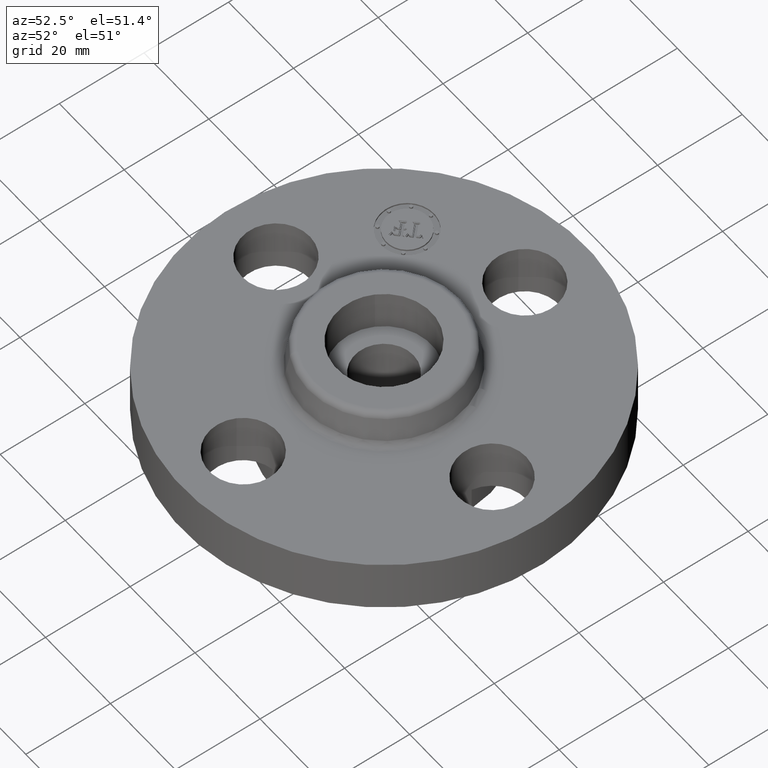
[diagram: clean part render]
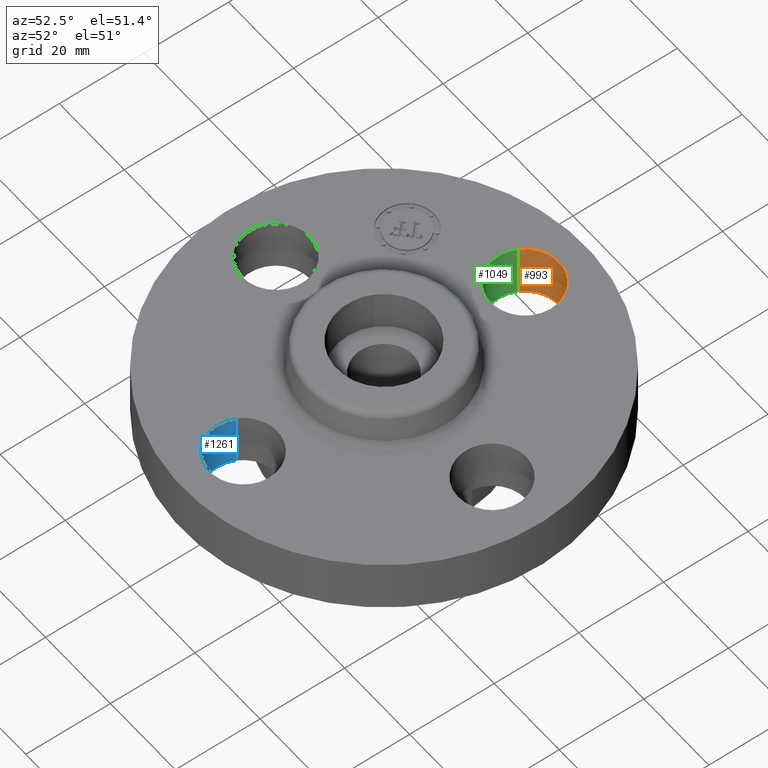
[diagram: same view with three faces highlighted in distinct colors, each labeled with its STEP entity id]
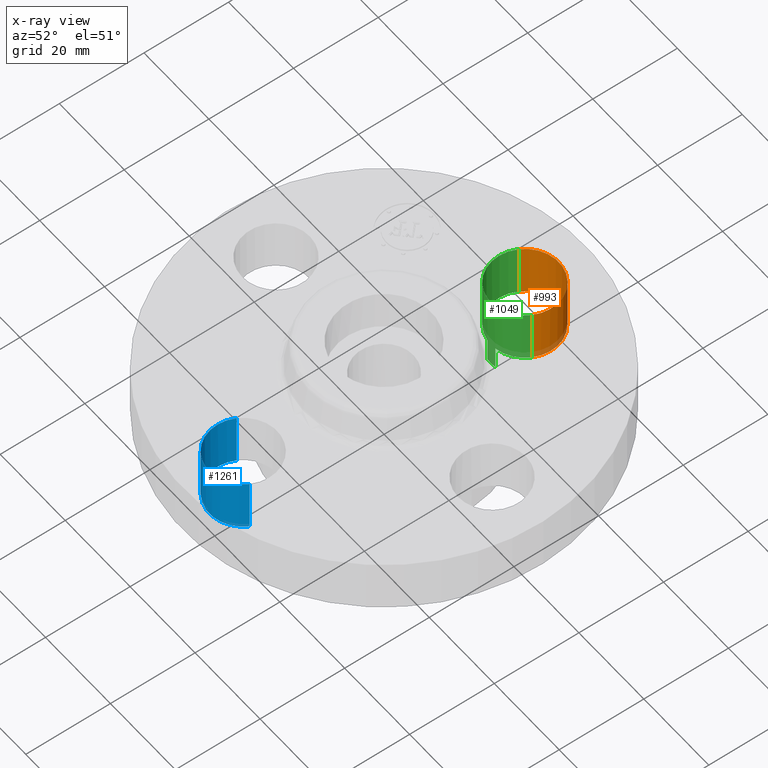
[diagram: x-ray of the same camera — body ghosted, the three highlighted faces saturated]
A machine part, auxiliary view with three faces highlighted in distinct colors.
The next image is the same camera in x-ray (body ghosted, the three faces saturated) — at least one of them is partly hidden behind the body in this view.
Their STEP definitions:

[orange] entity #993 — the highlighted cylindrical surface (partial cylindrical patch) has radius 8.001 mm, axis along (0, -0, -1).
#715=AXIS2_PLACEMENT_3D('Circle Axis2P3D',#713,#714,$) ;
#954=AXIS2_PLACEMENT_3D('Cylinder Axis2P3D',#951,#952,#953) ;
#713=CARTESIAN_POINT('Axis2P3D Location',(1.74838271595E-017,1.31000000002,0.500000000002)) ;
#717=CARTESIAN_POINT('Vertex',(-0.276438506996,1.46101904467,0.499999999987)) ;
#719=CARTESIAN_POINT('Vertex',(0.276438506965,1.15898095534,0.500000000002)) ;
#951=CARTESIAN_POINT('Axis2P3D Location',(0.,1.31000000001,0.496062992128)) ;
#956=CARTESIAN_POINT('Line Origine',(-0.276438506996,1.46101904467,0.250000000001)) ;
#960=CARTESIAN_POINT('Vertex',(-0.276438506965,1.46101904467,0.)) ;
#964=CARTESIAN_POINT('Control Point',(-0.276438506996,1.46101904467,0.)) ;
#965=CARTESIAN_POINT('Control Point',(-0.252716490933,1.50444190381,8.34104439061E-013)) ;
#966=CARTESIAN_POINT('Control Point',(-0.220468416416,1.54320695598,1.66820887812E-012)) ;
#967=CARTESIAN_POINT('Control Point',(-0.180906878601,1.57507453335,2.50231331718E-012)) ;
#968=CARTESIAN_POINT('Control Point',(-0.0914202191715,1.62158053409,4.17052219531E-012)) ;
#969=CARTESIAN_POINT('Control Point',(0.00900750770346,1.63079693228,5.83873107343E-012)) ;
#970=CARTESIAN_POINT('Control Point',(0.059515519424,1.62535648068,6.67283551249E-012)) ;
#971=CARTESIAN_POINT('Control Point',(0.155676851623,1.59496456546,8.34104439061E-012)) ;
#972=CARTESIAN_POINT('Control Point',(0.233206955974,1.53046841643,1.00092532687E-011)) ;
#973=CARTESIAN_POINT('Control Point',(0.265074533342,1.49090687861,1.08433577078E-011)) ;
#974=CARTESIAN_POINT('Control Point',(0.311580534084,1.40142021918,1.25115665859E-011)) ;
#975=CARTESIAN_POINT('Control Point',(0.320796932274,1.30099249231,1.4179775464E-011)) ;
#976=CARTESIAN_POINT('Control Point',(0.315356480668,1.25048448059,1.50138799031E-011)) ;
#977=CARTESIAN_POINT('Control Point',(0.300160523059,1.20240381449,1.58479843422E-011)) ;
#978=CARTESIAN_POINT('Control Point',(0.276438506996,1.15898095535,1.66820887812E-011)) ;
#979=CARTESIAN_POINT('Vertex',(0.276438506965,1.15898095532,0.)) ;
#982=CARTESIAN_POINT('Line Origine',(0.276438506996,1.15898095535,0.250000000001)) ;
#714=DIRECTION('Axis2P3D Direction',(0.,0.,-0.0393700787402)) ;
#952=DIRECTION('Axis2P3D Direction',(0.,-0.,-0.0393700787402)) ;
#953=DIRECTION('Axis2P3D XDirection',(-0.0345504945626,0.0188750212049,0.)) ;
#957=DIRECTION('Vector Direction',(0.,0.,-0.0393700787402)) ;
#983=DIRECTION('Vector Direction',(0.,0.,-0.0393700787402)) ;
#958=VECTOR('Line Direction',#957,0.0393700787402) ;
#984=VECTOR('Line Direction',#983,0.0393700787402) ;
#988=ORIENTED_EDGE('',*,*,#962,.F.) ;
#989=ORIENTED_EDGE('',*,*,#981,.T.) ;
#990=ORIENTED_EDGE('',*,*,#986,.T.) ;
#991=ORIENTED_EDGE('',*,*,#721,.F.) ;
#993=ADVANCED_FACE('PartBody',(#992),#955,.F.) ;
#963=B_SPLINE_CURVE_WITH_KNOTS('',5,(#964,#965,#966,#967,#968,#969,#970,#971,#972,#973,#974,#975,#976,#977,#978),.UNSPECIFIED.,.F.,.U.,(6,3,3,3,6),(-12.5679414107,-6.28397070536,8.881784197E-016,6.28397070536,12.5679414107),.UNSPECIFIED.) ;
#716=CIRCLE('generated circle',#715,0.314999999981) ;
#955=CYLINDRICAL_SURFACE('generated cylinder',#954,0.315000000001) ;
#721=EDGE_CURVE('',#718,#720,#716,.T.) ;
#962=EDGE_CURVE('',#961,#718,#959,.F.) ;
#981=EDGE_CURVE('',#961,#980,#963,.T.) ;
#986=EDGE_CURVE('',#980,#720,#985,.F.) ;
#987=EDGE_LOOP('',(#988,#989,#990,#991)) ;
#992=FACE_OUTER_BOUND('',#987,.T.) ;
#959=LINE('Line',#956,#958) ;
#985=LINE('Line',#982,#984) ;
#718=VERTEX_POINT('',#717) ;
#720=VERTEX_POINT('',#719) ;
#961=VERTEX_POINT('',#960) ;
#980=VERTEX_POINT('',#979) ;

[blue] entity #1261 — the highlighted cylindrical surface (partial cylindrical patch) has radius 8.001 mm, axis along (0, 0, -1).
#764=AXIS2_PLACEMENT_3D('Circle Axis2P3D',#762,#763,$) ;
#1236=AXIS2_PLACEMENT_3D('Cylinder Axis2P3D',#1233,#1234,#1235) ;
#757=CARTESIAN_POINT('Vertex',(-0.276438506965,-1.15898095532,0.500000000002)) ;
#759=CARTESIAN_POINT('Vertex',(0.276438506996,-1.46101904467,0.499999999987)) ;
#762=CARTESIAN_POINT('Axis2P3D Location',(-3.08535874015E-011,-1.31000000005,0.500000000002)) ;
#1168=CARTESIAN_POINT('Line Origine',(-0.276438506996,-1.15898095535,0.140500000005)) ;
#1172=CARTESIAN_POINT('Vertex',(-0.276438506965,-1.15898095535,0.)) ;
#1207=CARTESIAN_POINT('Vertex',(0.276438506965,-1.4610190447,0.)) ;
#1210=CARTESIAN_POINT('Line Origine',(0.276438506996,-1.46101904467,0.140500000005)) ;
#1233=CARTESIAN_POINT('Axis2P3D Location',(1.60428730689E-016,-1.31000000001,0.496062992128)) ;
#1239=CARTESIAN_POINT('Control Point',(0.276438506996,-1.46101904467,0.)) ;
#1240=CARTESIAN_POINT('Control Point',(0.252716490933,-1.50444190381,8.34104439061E-013)) ;
#1241=CARTESIAN_POINT('Control Point',(0.220468416416,-1.54320695598,1.66820887812E-012)) ;
#1242=CARTESIAN_POINT('Control Point',(0.180906878601,-1.57507453335,2.50231331718E-012)) ;
#1243=CARTESIAN_POINT('Control Point',(0.0914202191715,-1.62158053409,4.17052219531E-012)) ;
#1244=CARTESIAN_POINT('Control Point',(-0.00900750770346,-1.63079693228,5.83873107343E-012)) ;
#1245=CARTESIAN_POINT('Control Point',(-0.059515519424,-1.62535648068,6.67283551249E-012)) ;
#1246=CARTESIAN_POINT('Control Point',(-0.155676851623,-1.59496456546,8.34104439061E-012)) ;
#1247=CARTESIAN_POINT('Control Point',(-0.233206955974,-1.53046841643,1.00092532687E-011)) ;
#1248=CARTESIAN_POINT('Control Point',(-0.265074533342,-1.49090687861,1.08433577078E-011)) ;
#1249=CARTESIAN_POINT('Control Point',(-0.311580534084,-1.40142021918,1.25115665859E-011)) ;
#1250=CARTESIAN_POINT('Control Point',(-0.320796932274,-1.30099249231,1.4179775464E-011)) ;
#1251=CARTESIAN_POINT('Control Point',(-0.315356480668,-1.25048448059,1.50138799031E-011)) ;
#1252=CARTESIAN_POINT('Control Point',(-0.300160523059,-1.20240381449,1.58479843422E-011)) ;
#1253=CARTESIAN_POINT('Control Point',(-0.276438506996,-1.15898095535,1.66820887812E-011)) ;
#763=DIRECTION('Axis2P3D Direction',(0.,0.,-0.0393700787402)) ;
#1169=DIRECTION('Vector Direction',(0.,0.,-0.0393700787402)) ;
#1211=DIRECTION('Vector Direction',(0.,0.,-0.0393700787402)) ;
#1234=DIRECTION('Axis2P3D Direction',(0.,0.,-0.0393700787402)) ;
#1235=DIRECTION('Axis2P3D XDirection',(0.0345504945626,-0.0188750212049,0.)) ;
#1170=VECTOR('Line Direction',#1169,0.0393700787402) ;
#1212=VECTOR('Line Direction',#1211,0.0393700787402) ;
#1256=ORIENTED_EDGE('',*,*,#1214,.F.) ;
#1257=ORIENTED_EDGE('',*,*,#1254,.T.) ;
#1258=ORIENTED_EDGE('',*,*,#1174,.T.) ;
#1259=ORIENTED_EDGE('',*,*,#766,.F.) ;
#1261=ADVANCED_FACE('PartBody',(#1260),#1237,.F.) ;
#1238=B_SPLINE_CURVE_WITH_KNOTS('',5,(#1239,#1240,#1241,#1242,#1243,#1244,#1245,#1246,#1247,#1248,#1249,#1250,#1251,#1252,#1253),.UNSPECIFIED.,.F.,.U.,(6,3,3,3,6),(-12.5679414107,-6.28397070536,8.881784197E-016,6.28397070536,12.5679414107),.UNSPECIFIED.) ;
#765=CIRCLE('generated circle',#764,0.314999999981) ;
#1237=CYLINDRICAL_SURFACE('generated cylinder',#1236,0.315000000001) ;
#766=EDGE_CURVE('',#760,#758,#765,.T.) ;
#1174=EDGE_CURVE('',#1173,#758,#1171,.F.) ;
#1214=EDGE_CURVE('',#1208,#760,#1213,.F.) ;
#1254=EDGE_CURVE('',#1208,#1173,#1238,.T.) ;
#1255=EDGE_LOOP('',(#1256,#1257,#1258,#1259)) ;
#1260=FACE_OUTER_BOUND('',#1255,.T.) ;
#1171=LINE('Line',#1168,#1170) ;
#1213=LINE('Line',#1210,#1212) ;
#758=VERTEX_POINT('',#757) ;
#760=VERTEX_POINT('',#759) ;
#1173=VERTEX_POINT('',#1172) ;
#1208=VERTEX_POINT('',#1207) ;

[green] entity #1049 — the highlighted cylindrical surface (partial cylindrical patch) has radius 8.001 mm, axis along (0, -0, -1).
#724=AXIS2_PLACEMENT_3D('Circle Axis2P3D',#722,#723,$) ;
#1004=AXIS2_PLACEMENT_3D('Cylinder Axis2P3D',#1001,#1002,#1003) ;
#1008=AXIS2_PLACEMENT_3D('Circle Axis2P3D',#1006,#1007,$) ;
#1022=AXIS2_PLACEMENT_3D('Circle Axis2P3D',#1020,#1021,$) ;
#1036=AXIS2_PLACEMENT_3D('Circle Axis2P3D',#1034,#1035,$) ;
#717=CARTESIAN_POINT('Vertex',(-0.276438506996,1.46101904467,0.499999999987)) ;
#719=CARTESIAN_POINT('Vertex',(0.276438506965,1.15898095534,0.500000000002)) ;
#722=CARTESIAN_POINT('Axis2P3D Location',(-3.08535874015E-011,1.30999999996,0.500000000002)) ;
#956=CARTESIAN_POINT('Line Origine',(-0.276438506996,1.46101904467,0.250000000001)) ;
#960=CARTESIAN_POINT('Vertex',(-0.276438506965,1.46101904467,0.)) ;
#979=CARTESIAN_POINT('Vertex',(0.276438506965,1.15898095532,0.)) ;
#982=CARTESIAN_POINT('Line Origine',(0.276438506996,1.15898095535,0.250000000001)) ;
#1001=CARTESIAN_POINT('Axis2P3D Location',(0.,1.31000000001,0.496062992128)) ;
#1006=CARTESIAN_POINT('Axis2P3D Location',(0.,1.31000000001,1.66820887812E-011)) ;
#1010=CARTESIAN_POINT('Vertex',(0.0488269754869,0.998807251908,1.55491018136E-011)) ;
#1013=CARTESIAN_POINT('Line Origine',(0.0488269754863,0.998807251917,0.140500000005)) ;
#1017=CARTESIAN_POINT('Vertex',(0.0488269755133,0.998807251894,-0.219000000001)) ;
#1020=CARTESIAN_POINT('Axis2P3D Location',(0.,1.31000000001,-0.218999999977)) ;
#1024=CARTESIAN_POINT('Vertex',(-0.0488269755133,0.998807251894,-0.219000000001)) ;
#1027=CARTESIAN_POINT('Line Origine',(-0.0488269754863,0.998807251917,0.140500000005)) ;
#1031=CARTESIAN_POINT('Vertex',(-0.0488269754869,0.998807251908,1.55491018136E-011)) ;
#1034=CARTESIAN_POINT('Axis2P3D Location',(0.,1.31000000001,1.66820887812E-011)) ;
#723=DIRECTION('Axis2P3D Direction',(0.,0.,-0.0393700787402)) ;
#957=DIRECTION('Vector Direction',(0.,0.,-0.0393700787402)) ;
#983=DIRECTION('Vector Direction',(0.,0.,-0.0393700787402)) ;
#1002=DIRECTION('Axis2P3D Direction',(0.,-0.,-0.0393700787402)) ;
#1003=DIRECTION('Axis2P3D XDirection',(0.0345504945626,-0.0188750212049,0.)) ;
#1007=DIRECTION('Axis2P3D Direction',(0.,-0.,-0.0393700787402)) ;
#1014=DIRECTION('Vector Direction',(0.,0.,-0.0393700787402)) ;
#1021=DIRECTION('Axis2P3D Direction',(0.,-0.,-0.0393700787402)) ;
#1028=DIRECTION('Vector Direction',(0.,0.,-0.0393700787402)) ;
#1035=DIRECTION('Axis2P3D Direction',(0.,-0.,-0.0393700787402)) ;
#958=VECTOR('Line Direction',#957,0.0393700787402) ;
#984=VECTOR('Line Direction',#983,0.0393700787402) ;
#1015=VECTOR('Line Direction',#1014,0.0393700787402) ;
#1029=VECTOR('Line Direction',#1028,0.0393700787402) ;
#1040=ORIENTED_EDGE('',*,*,#986,.F.) ;
#1041=ORIENTED_EDGE('',*,*,#1012,.T.) ;
#1042=ORIENTED_EDGE('',*,*,#1019,.T.) ;
#1043=ORIENTED_EDGE('',*,*,#1026,.T.) ;
#1044=ORIENTED_EDGE('',*,*,#1033,.F.) ;
#1045=ORIENTED_EDGE('',*,*,#1038,.T.) ;
#1046=ORIENTED_EDGE('',*,*,#962,.T.) ;
#1047=ORIENTED_EDGE('',*,*,#726,.F.) ;
#1049=ADVANCED_FACE('PartBody',(#1048),#1005,.F.) ;
#725=CIRCLE('generated circle',#724,0.314999999981) ;
#1009=CIRCLE('generated circle',#1008,0.315000000001) ;
#1023=CIRCLE('generated circle',#1022,0.315000000001) ;
#1037=CIRCLE('generated circle',#1036,0.315000000001) ;
#1005=CYLINDRICAL_SURFACE('generated cylinder',#1004,0.315000000001) ;
#726=EDGE_CURVE('',#720,#718,#725,.T.) ;
#962=EDGE_CURVE('',#961,#718,#959,.F.) ;
#986=EDGE_CURVE('',#980,#720,#985,.F.) ;
#1012=EDGE_CURVE('',#980,#1011,#1009,.T.) ;
#1019=EDGE_CURVE('',#1011,#1018,#1016,.T.) ;
#1026=EDGE_CURVE('',#1018,#1025,#1023,.T.) ;
#1033=EDGE_CURVE('',#1032,#1025,#1030,.T.) ;
#1038=EDGE_CURVE('',#1032,#961,#1037,.T.) ;
#1039=EDGE_LOOP('',(#1040,#1041,#1042,#1043,#1044,#1045,#1046,#1047)) ;
#1048=FACE_OUTER_BOUND('',#1039,.T.) ;
#959=LINE('Line',#956,#958) ;
#985=LINE('Line',#982,#984) ;
#1016=LINE('Line',#1013,#1015) ;
#1030=LINE('Line',#1027,#1029) ;
#718=VERTEX_POINT('',#717) ;
#720=VERTEX_POINT('',#719) ;
#961=VERTEX_POINT('',#960) ;
#980=VERTEX_POINT('',#979) ;
#1011=VERTEX_POINT('',#1010) ;
#1018=VERTEX_POINT('',#1017) ;
#1025=VERTEX_POINT('',#1024) ;
#1032=VERTEX_POINT('',#1031) ;